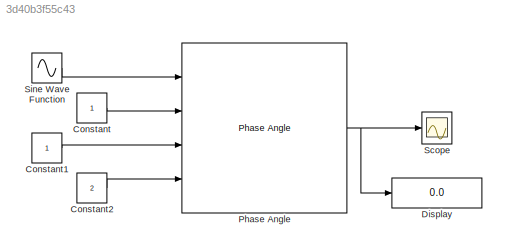
MODEL slx_3d40b3f55c43
KIND model
BLOCK [Constant] Constant
BLOCK [Constant] Constant1
BLOCK [Constant] Constant2
  Value = 2
BLOCK [Display] Display
  Decimation = 1
  Ports = [1]
BLOCK [Reference] Phase Angle  REF=rocket_angular_flight_library/Phase Angle
  Ports = [4, 1]
  SourceBlock = rocket_angular_flight_library/Phase Angle
  SourceType = SubSystem
BLOCK [Scope] Scope
  DataFormat = StructureWithTime
  Floating = off
  NumInputPorts = 1
  Ports = [1]
  SampleTime = 0
  ShowLegends = off
BLOCK [Sin] Sine Wave Function
  Ports = [0, 1]
  SampleTime = 0
LINE Constant1:1 -> Phase Angle:3
LINE Constant2:1 -> Phase Angle:4
LINE Constant:1 -> Phase Angle:2
NET Phase Angle:1 -> Display:1, Scope:1
LINE Sine Wave Function:1 -> Phase Angle:1
note: NET lines group one-source signal fan-out (src -> all destinations, sorted); 1:1 wires keep LINE
